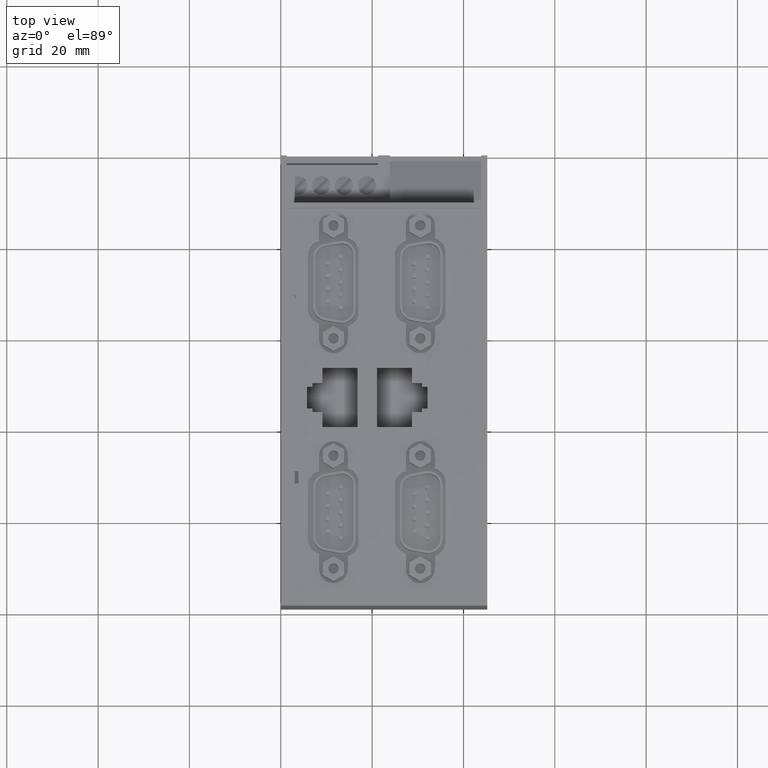
[diagram: clean part render]
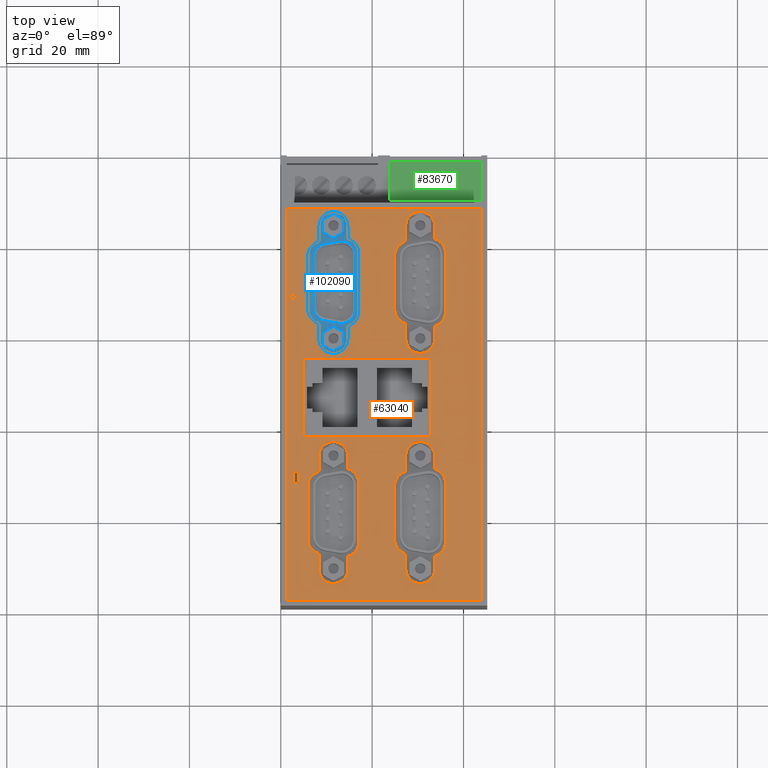
[diagram: same view with three faces highlighted in distinct colors, each labeled with its STEP entity id]
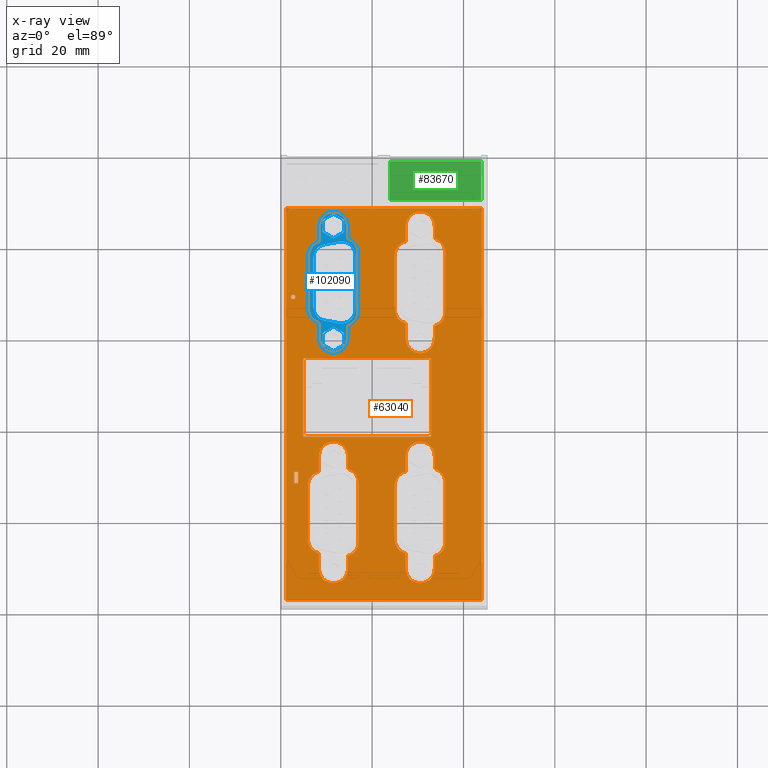
[diagram: x-ray of the same camera — body ghosted, the three highlighted faces saturated]
A machine part, top view with three faces highlighted in distinct colors.
The next image is the same camera in x-ray (body ghosted, the three faces saturated) — at least one of them is partly hidden behind the body in this view.
Their STEP definitions:

[orange] entity #63040 — the highlighted planar face has unit normal (-0, 0, 1).
#56980=CARTESIAN_POINT('',(-65.7499999999966,106.800000000019,
32.6499999999959));
#56990=VERTEX_POINT('',#56980);
#57020=CARTESIAN_POINT('',(24.,106.799999999941,32.6499999999959));
#57030=DIRECTION('',(-1.,7.38964445188328E-13,0.));
#57040=VECTOR('',#57030,1.);
#57050=LINE('',#57020,#57040);
#57060=CARTESIAN_POINT('',(20.0499999999852,106.799999999956,
32.6499999999959));
#57070=VERTEX_POINT('',#57060);
#57080=EDGE_CURVE('',#57070,#56990,#57050,.T.);
#57360=CARTESIAN_POINT('',(-65.7499999999966,106.800000000019,
-10.0499999998488));
#57370=VERTEX_POINT('',#57360);
#57400=CARTESIAN_POINT('',(-65.7499999999966,106.800000000008,-11.3));
#57410=DIRECTION('',(-6.47623918906154E-37,-8.76330016597908E-25,-1.));
#57420=VECTOR('',#57410,1.);
#57430=LINE('',#57400,#57420);
#57440=EDGE_CURVE('',#56990,#57370,#57430,.T.);
#57640=CARTESIAN_POINT('',(20.0499999999852,106.799999999944,-11.3));
#57650=DIRECTION('',(6.47623918906154E-37,8.76330016597908E-25,1.));
#57660=VECTOR('',#57650,1.);
#57670=LINE('',#57640,#57660);
#57680=CARTESIAN_POINT('',(20.0499999999852,106.799999999956,
-10.0499999998488));
#57690=VERTEX_POINT('',#57680);
#57700=EDGE_CURVE('',#57690,#57070,#57670,.T.);
#57890=CARTESIAN_POINT('',(-6.94999999994276,106.799999999976,
-2.19999999999999));
#57900=DIRECTION('',(7.38964445188328E-13,1.,-8.76330016597908E-25));
#57910=DIRECTION('',(1.,-7.38964445188328E-13,-0.));
#57920=AXIS2_PLACEMENT_3D('',#57890,#57900,#57910);
#57930=PLANE('',#57920);
#57940=CARTESIAN_POINT('',(28.9417518810975,106.799999999938,
16.0506000000365));
#57950=DIRECTION('',(1.,-7.38964445188328E-13,-0.));
#57960=VECTOR('',#57950,1.);
#57970=LINE('',#57940,#57960);
#57980=CARTESIAN_POINT('',(12.790088618989,106.799999999961,
16.0506000000365));
#57990=VERTEX_POINT('',#57980);
#58000=CARTESIAN_POINT('',(16.1737518811036,106.799999999959,
16.0506000000365));
#58010=VERTEX_POINT('',#58000);
#58020=EDGE_CURVE('',#57990,#58010,#57970,.T.);
#58030=ORIENTED_EDGE('',*,*,#58020,.T.);
#58040=CARTESIAN_POINT('',(9.70395180272197,106.799999999952,
16.7965118924752));
#58050=DIRECTION('',(7.38964445188328E-13,1.,-8.76330016597908E-25));
#58060=DIRECTION('',(-1.,7.38964445188328E-13,-2.39016997792508E-40));
#58070=AXIS2_PLACEMENT_3D('',#58040,#58050,#58060);
#58080=CIRCLE('',#58070,3.175);
#58090=CARTESIAN_POINT('',(9.19235799916622,106.799999999964,
13.6630000000192));
#58100=VERTEX_POINT('',#58090);
#58110=EDGE_CURVE('',#57990,#58100,#58080,.T.);
#58120=ORIENTED_EDGE('',*,*,#58110,.F.);
#58130=CARTESIAN_POINT('',(28.9417518810975,106.799999999938,
13.6630000000192));
#58140=DIRECTION('',(1.,-7.38964445188328E-13,-0.));
#58150=VECTOR('',#58140,1.);
#58160=LINE('',#58130,#58150);
#58170=CARTESIAN_POINT('',(-1.58445426617478,106.799999999972,
13.6630000000192));
#58180=VERTEX_POINT('',#58170);
#58190=EDGE_CURVE('',#58180,#58100,#58160,.T.);
#58200=ORIENTED_EDGE('',*,*,#58190,.T.);
#58210=CARTESIAN_POINT('',(-2.09604805066931,106.799999999961,
16.7965118955872));
#58220=DIRECTION('',(7.38964445188328E-13,1.,-8.76330016597908E-25));
#58230=DIRECTION('',(-1.,7.38964445188328E-13,-2.39016997792508E-40));
#58240=AXIS2_PLACEMENT_3D('',#58210,#58220,#58230);
#58250=CIRCLE('',#58240,3.175);
#58260=CARTESIAN_POINT('',(-5.18218486618412,106.799999999975,
16.0506000000365));
#58270=VERTEX_POINT('',#58260);
#58280=EDGE_CURVE('',#58180,#58270,#58250,.T.);
#58290=ORIENTED_EDGE('',*,*,#58280,.F.);
#58300=CARTESIAN_POINT('',(28.9417518810975,106.799999999938,
16.0506000000365));
#58310=DIRECTION('',(1.,-7.38964445188328E-13,-0.));
#58320=VECTOR('',#58310,1.);
#58330=LINE('',#58300,#58320);
#58340=CARTESIAN_POINT('',(-8.56584811889645,106.799999999977,
16.0506000000365));
#58350=VERTEX_POINT('',#58340);
#58360=EDGE_CURVE('',#58350,#58270,#58330,.T.);
#58370=ORIENTED_EDGE('',*,*,#58360,.T.);
#58380=CARTESIAN_POINT('',(-8.56584811889645,106.799999999965,
19.2256000000365));
#58390=DIRECTION('',(7.38964445188328E-13,1.,-8.76330016597908E-25));
#58400=DIRECTION('',(-4.66293670342565E-15,-8.72884272163913E-25,-1.));
#58410=AXIS2_PLACEMENT_3D('',#58380,#58390,#58400);
#58420=CIRCLE('',#58410,3.175);
#58430=CARTESIAN_POINT('',(-8.56584811889645,106.799999999977,
22.4006000000365));
#58440=VERTEX_POINT('',#58430);
#58450=EDGE_CURVE('',#58350,#58440,#58420,.T.);
#58460=ORIENTED_EDGE('',*,*,#58450,.F.);
#58470=CARTESIAN_POINT('',(28.9417518810975,106.799999999938,
22.4006000000365));
#58480=DIRECTION('',(-1.,7.38964445188328E-13,0.));
#58490=VECTOR('',#58480,1.);
#58500=LINE('',#58470,#58490);
#58510=CARTESIAN_POINT('',(-5.76007406284563,106.799999999975,
22.4006000000365));
#58520=VERTEX_POINT('',#58510);
#58530=EDGE_CURVE('',#58520,#58440,#58500,.T.);
#58540=ORIENTED_EDGE('',*,*,#58530,.T.);
#58550=CARTESIAN_POINT('',(-2.69604820968711,106.799999999961,
21.5685119210591));
#58560=DIRECTION('',(7.38964445188328E-13,1.,-8.76330016597908E-25));
#58570=DIRECTION('',(-1.,7.38964445188328E-13,-2.390169977918E-40));
#58580=AXIS2_PLACEMENT_3D('',#58550,#58560,#58570);
#58590=CIRCLE('',#58580,3.175);
#58600=CARTESIAN_POINT('',(-2.69604820968897,106.799999999973,
24.7435119210591));
#58610=VERTEX_POINT('',#58600);
#58620=EDGE_CURVE('',#58520,#58610,#58590,.T.);
#58630=ORIENTED_EDGE('',*,*,#58620,.F.);
#58640=CARTESIAN_POINT('',(28.9417518810975,106.799999999938,
24.7435119210591));
#58650=DIRECTION('',(-1.,7.38964445188328E-13,0.));
#58660=VECTOR('',#58650,1.);
#58670=LINE('',#58640,#58660);
#58680=CARTESIAN_POINT('',(10.3039519720795,106.799999999963,
24.7435119210591));
#58690=VERTEX_POINT('',#58680);
#58700=EDGE_CURVE('',#58690,#58610,#58670,.T.);
#58710=ORIENTED_EDGE('',*,*,#58700,.T.);
#58720=CARTESIAN_POINT('',(10.3039519720795,106.799999999952,
21.5685119210591));
#58730=DIRECTION('',(7.38964445188328E-13,1.,-8.76330016597908E-25));
#58740=DIRECTION('',(-1.,7.38964445188328E-13,-2.39016997793215E-40));
#58750=AXIS2_PLACEMENT_3D('',#58720,#58730,#58740);
#58760=CIRCLE('',#58750,3.175);
#58770=CARTESIAN_POINT('',(13.367977825238,106.799999999961,
22.4006000000365));
#58780=VERTEX_POINT('',#58770);
#58790=EDGE_CURVE('',#58690,#58780,#58760,.T.);
#58800=ORIENTED_EDGE('',*,*,#58790,.F.);
#58810=CARTESIAN_POINT('',(28.9417518810975,106.799999999938,
22.4006000000365));
#58820=DIRECTION('',(-1.,7.38964445188328E-13,0.));
#58830=VECTOR('',#58820,1.);
#58840=LINE('',#58810,#58830);
#58850=CARTESIAN_POINT('',(16.1737518811039,106.799999999959,
22.4006000000365));
#58860=VERTEX_POINT('',#58850);
#58870=EDGE_CURVE('',#58860,#58780,#58840,.T.);
#58880=ORIENTED_EDGE('',*,*,#58870,.T.);
#58890=CARTESIAN_POINT('',(16.1737518811036,106.799999999947,
19.2256000000365));
#58900=DIRECTION('',(7.38964445188328E-13,1.,-8.76330016597908E-25));
#58910=DIRECTION('',(7.105427357601E-15,8.71079358412773E-25,1.));
#58920=AXIS2_PLACEMENT_3D('',#58890,#58900,#58910);
#58930=CIRCLE('',#58920,3.175);
#58940=EDGE_CURVE('',#58860,#58010,#58930,.T.);
#58950=ORIENTED_EDGE('',*,*,#58940,.F.);
#58960=EDGE_LOOP('',(#58950,#58880,#58800,#58710,#58630,#58540,#58460,
#58370,#58290,#58200,#58120,#58030));
#58970=FACE_BOUND('',#58960,.T.);
#58980=CARTESIAN_POINT('',(-21.4582481189025,106.799999999938,
-2.9493999999635));
#58990=DIRECTION('',(1.,-7.38964445188328E-13,-0.));
#59000=VECTOR('',#58990,1.);
#59010=LINE('',#58980,#59000);
#59020=CARTESIAN_POINT('',(-37.609911381011,106.799999999999,
-2.9493999999635));
#59030=VERTEX_POINT('',#59020);
#59040=CARTESIAN_POINT('',(-34.2262481188964,106.799999999996,
-2.9493999999635));
#59050=VERTEX_POINT('',#59040);
#59060=EDGE_CURVE('',#59030,#59050,#59010,.T.);
#59070=ORIENTED_EDGE('',*,*,#59060,.T.);
#59080=CARTESIAN_POINT('',(-40.696048197278,106.799999999952,
-2.20348810752482));
#59090=DIRECTION('',(7.38964445188328E-13,1.,-8.76330016597908E-25));
#59100=DIRECTION('',(-1.,7.38964445188328E-13,-2.39016997792508E-40));
#59110=AXIS2_PLACEMENT_3D('',#59080,#59090,#59100);
#59120=CIRCLE('',#59110,3.175);
#59130=CARTESIAN_POINT('',(-41.2076420008338,106.800000000001,
-5.33699999998085));
#59140=VERTEX_POINT('',#59130);
#59150=EDGE_CURVE('',#59030,#59140,#59120,.T.);
#59160=ORIENTED_EDGE('',*,*,#59150,.F.);
#59170=CARTESIAN_POINT('',(-21.4582481189025,106.799999999938,
-5.33699999998085));
#59180=DIRECTION('',(1.,-7.38964445188328E-13,-0.));
#59190=VECTOR('',#59180,1.);
#59200=LINE('',#59170,#59190);
#59210=CARTESIAN_POINT('',(-51.9844542661748,106.800000000009,
-5.33699999998085));
#59220=VERTEX_POINT('',#59210);
#59230=EDGE_CURVE('',#59220,#59140,#59200,.T.);
#59240=ORIENTED_EDGE('',*,*,#59230,.T.);
#59250=CARTESIAN_POINT('',(-52.4960480506693,106.799999999961,
-2.20348810441278));
#59260=DIRECTION('',(7.38964445188328E-13,1.,-8.76330016597908E-25));
#59270=DIRECTION('',(-1.,7.38964445188328E-13,-2.39016997792508E-40));
#59280=AXIS2_PLACEMENT_3D('',#59250,#59260,#59270);
#59290=CIRCLE('',#59280,3.175);
#59300=CARTESIAN_POINT('',(-55.5821848661841,106.800000000012,
-2.94939999996351));
#59310=VERTEX_POINT('',#59300);
#59320=EDGE_CURVE('',#59220,#59310,#59290,.T.);
#59330=ORIENTED_EDGE('',*,*,#59320,.F.);
#59340=CARTESIAN_POINT('',(-21.4582481189025,106.799999999938,
-2.94939999996351));
#59350=DIRECTION('',(1.,-7.38964445188328E-13,-0.));
#59360=VECTOR('',#59350,1.);
#59370=LINE('',#59340,#59360);
#59380=CARTESIAN_POINT('',(-58.9658481188965,106.800000000014,
-2.94939999996351));
#59390=VERTEX_POINT('',#59380);
#59400=EDGE_CURVE('',#59390,#59310,#59370,.T.);
#59410=ORIENTED_EDGE('',*,*,#59400,.T.);
#59420=CARTESIAN_POINT('',(-58.9658481188965,106.799999999965,
0.225600000036501));
#59430=DIRECTION('',(7.38964445188328E-13,1.,-8.76330016597908E-25));
#59440=DIRECTION('',(-4.66293670342565E-15,-8.72884272163913E-25,-1.));
#59450=AXIS2_PLACEMENT_3D('',#59420,#59430,#59440);
#59460=CIRCLE('',#59450,3.175);
#59470=CARTESIAN_POINT('',(-58.9658481188964,106.800000000014,
3.4006000000365));
#59480=VERTEX_POINT('',#59470);
#59490=EDGE_CURVE('',#59390,#59480,#59460,.T.);
#59500=ORIENTED_EDGE('',*,*,#59490,.F.);
#59510=CARTESIAN_POINT('',(-21.4582481189025,106.799999999938,
3.4006000000365));
#59520=DIRECTION('',(-1.,7.38964445188328E-13,0.));
#59530=VECTOR('',#59520,1.);
#59540=LINE('',#59510,#59530);
#59550=CARTESIAN_POINT('',(-56.1600740628456,106.800000000012,
3.4006000000365));
#59560=VERTEX_POINT('',#59550);
#59570=EDGE_CURVE('',#59560,#59480,#59540,.T.);
#59580=ORIENTED_EDGE('',*,*,#59570,.T.);
#59590=CARTESIAN_POINT('',(-53.0960482096871,106.799999999961,
2.56851192105915));
#59600=DIRECTION('',(7.38964445188328E-13,1.,-8.76330016597908E-25));
#59610=DIRECTION('',(-1.,7.38964445188328E-13,-2.390169977918E-40));
#59620=AXIS2_PLACEMENT_3D('',#59590,#59600,#59610);
#59630=CIRCLE('',#59620,3.175);
#59640=CARTESIAN_POINT('',(-53.096048209689,106.80000000001,
5.74351192105915));
#59650=VERTEX_POINT('',#59640);
#59660=EDGE_CURVE('',#59560,#59650,#59630,.T.);
#59670=ORIENTED_EDGE('',*,*,#59660,.F.);
#59680=CARTESIAN_POINT('',(-21.4582481189025,106.799999999938,
5.74351192105915));
#59690=DIRECTION('',(-1.,7.38964445188328E-13,0.));
#59700=VECTOR('',#59690,1.);
#59710=LINE('',#59680,#59700);
#59720=CARTESIAN_POINT('',(-40.0960480279205,106.800000000001,
5.74351192105915));
#59730=VERTEX_POINT('',#59720);
#59740=EDGE_CURVE('',#59730,#59650,#59710,.T.);
#59750=ORIENTED_EDGE('',*,*,#59740,.T.);
#59760=CARTESIAN_POINT('',(-40.0960480279205,106.799999999952,
2.56851192105914));
#59770=DIRECTION('',(7.38964445188328E-13,1.,-8.76330016597908E-25));
#59780=DIRECTION('',(-1.,7.38964445188328E-13,-2.39016997793215E-40));
#59790=AXIS2_PLACEMENT_3D('',#59760,#59770,#59780);
#59800=CIRCLE('',#59790,3.175);
#59810=CARTESIAN_POINT('',(-37.032022174762,106.799999999998,
3.40060000003649));
#59820=VERTEX_POINT('',#59810);
#59830=EDGE_CURVE('',#59730,#59820,#59800,.T.);
#59840=ORIENTED_EDGE('',*,*,#59830,.F.);
#59850=CARTESIAN_POINT('',(-21.4582481189025,106.799999999938,
3.40060000003649));
#59860=DIRECTION('',(-1.,7.38964445188328E-13,0.));
#59870=VECTOR('',#59860,1.);
#59880=LINE('',#59850,#59870);
#59890=CARTESIAN_POINT('',(-34.2262481188961,106.799999999996,
3.40060000003649));
#59900=VERTEX_POINT('',#59890);
#59910=EDGE_CURVE('',#59900,#59820,#59880,.T.);
#59920=ORIENTED_EDGE('',*,*,#59910,.T.);
#59930=CARTESIAN_POINT('',(-34.2262481188965,106.799999999947,
0.225600000036501));
#59940=DIRECTION('',(7.38964445188328E-13,1.,-8.76330016597908E-25));
#59950=DIRECTION('',(7.105427357601E-15,8.71079358412773E-25,1.));
#59960=AXIS2_PLACEMENT_3D('',#59930,#59940,#59950);
#59970=CIRCLE('',#59960,3.175);
#59980=EDGE_CURVE('',#59900,#59050,#59970,.T.);
#59990=ORIENTED_EDGE('',*,*,#59980,.F.);
#60000=EDGE_LOOP('',(#59990,#59920,#59840,#59750,#59670,#59580,#59500,
#59410,#59330,#59240,#59160,#59070));
#60010=FACE_BOUND('',#60000,.T.);
#60020=CARTESIAN_POINT('',(-21.4582481189025,106.799999999938,
16.0506000000365));
#60030=DIRECTION('',(1.,-7.38964445188328E-13,-0.));
#60040=VECTOR('',#60030,1.);
#60050=LINE('',#60020,#60040);
#60060=CARTESIAN_POINT('',(-37.609911381011,106.799999999999,
16.0506000000365));
#60070=VERTEX_POINT('',#60060);
#60080=CARTESIAN_POINT('',(-34.2262481188964,106.799999999996,
16.0506000000365));
#60090=VERTEX_POINT('',#60080);
#60100=EDGE_CURVE('',#60070,#60090,#60050,.T.);
#60110=ORIENTED_EDGE('',*,*,#60100,.T.);
#60120=CARTESIAN_POINT('',(-40.696048197278,106.799999999952,
16.7965118924752));
#60130=DIRECTION('',(7.38964445188328E-13,1.,-8.76330016597908E-25));
#60140=DIRECTION('',(-1.,7.38964445188328E-13,-2.39016997792508E-40));
#60150=AXIS2_PLACEMENT_3D('',#60120,#60130,#60140);
#60160=CIRCLE('',#60150,3.175);
#60170=CARTESIAN_POINT('',(-41.2076420008338,106.800000000001,
13.6630000000192));
#60180=VERTEX_POINT('',#60170);
#60190=EDGE_CURVE('',#60070,#60180,#60160,.T.);
#60200=ORIENTED_EDGE('',*,*,#60190,.F.);
#60210=CARTESIAN_POINT('',(-21.4582481189025,106.799999999938,
13.6630000000192));
#60220=DIRECTION('',(1.,-7.38964445188328E-13,-0.));
#60230=VECTOR('',#60220,1.);
#60240=LINE('',#60210,#60230);
#60250=CARTESIAN_POINT('',(-51.9844542661748,106.800000000009,
13.6630000000192));
#60260=VERTEX_POINT('',#60250);
#60270=EDGE_CURVE('',#60260,#60180,#60240,.T.);
#60280=ORIENTED_EDGE('',*,*,#60270,.T.);
#60290=CARTESIAN_POINT('',(-52.4960480506693,106.799999999961,
16.7965118955872));
#60300=DIRECTION('',(7.38964445188328E-13,1.,-8.76330016597908E-25));
#60310=DIRECTION('',(-1.,7.38964445188328E-13,-2.39016997792508E-40));
#60320=AXIS2_PLACEMENT_3D('',#60290,#60300,#60310);
#60330=CIRCLE('',#60320,3.175);
#60340=CARTESIAN_POINT('',(-55.5821848661841,106.800000000012,
16.0506000000365));
#60350=VERTEX_POINT('',#60340);
#60360=EDGE_CURVE('',#60260,#60350,#60330,.T.);
#60370=ORIENTED_EDGE('',*,*,#60360,.F.);
#60380=CARTESIAN_POINT('',(-21.4582481189025,106.799999999938,
16.0506000000365));
#60390=DIRECTION('',(1.,-7.38964445188328E-13,-0.));
#60400=VECTOR('',#60390,1.);
#60410=LINE('',#60380,#60400);
#60420=CARTESIAN_POINT('',(-58.9658481188965,106.800000000014,
16.0506000000365));
#60430=VERTEX_POINT('',#60420);
#60440=EDGE_CURVE('',#60430,#60350,#60410,.T.);
#60450=ORIENTED_EDGE('',*,*,#60440,.T.);
#60460=CARTESIAN_POINT('',(-58.9658481188965,106.799999999965,
19.2256000000365));
#60470=DIRECTION('',(7.38964445188328E-13,1.,-8.76330016597908E-25));
#60480=DIRECTION('',(-4.66293670342565E-15,-8.72884272163913E-25,-1.));
#60490=AXIS2_PLACEMENT_3D('',#60460,#60470,#60480);
#60500=CIRCLE('',#60490,3.175);
#60510=CARTESIAN_POINT('',(-58.9658481188964,106.800000000014,
22.4006000000365));
#60520=VERTEX_POINT('',#60510);
#60530=EDGE_CURVE('',#60430,#60520,#60500,.T.);
#60540=ORIENTED_EDGE('',*,*,#60530,.F.);
#60550=CARTESIAN_POINT('',(-21.4582481189025,106.799999999938,
22.4006000000365));
#60560=DIRECTION('',(-1.,7.38964445188328E-13,0.));
#60570=VECTOR('',#60560,1.);
#60580=LINE('',#60550,#60570);
#60590=CARTESIAN_POINT('',(-56.1600740628456,106.800000000012,
22.4006000000365));
#60600=VERTEX_POINT('',#60590);
#60610=EDGE_CURVE('',#60600,#60520,#60580,.T.);
#60620=ORIENTED_EDGE('',*,*,#60610,.T.);
#60630=CARTESIAN_POINT('',(-53.0960482096871,106.799999999961,
21.5685119210591));
#60640=DIRECTION('',(7.38964445188328E-13,1.,-8.76330016597908E-25));
#60650=DIRECTION('',(-1.,7.38964445188328E-13,-2.390169977918E-40));
#60660=AXIS2_PLACEMENT_3D('',#60630,#60640,#60650);
#60670=CIRCLE('',#60660,3.175);
#60680=CARTESIAN_POINT('',(-53.096048209689,106.80000000001,
24.7435119210591));
#60690=VERTEX_POINT('',#60680);
#60700=EDGE_CURVE('',#60600,#60690,#60670,.T.);
#60710=ORIENTED_EDGE('',*,*,#60700,.F.);
#60720=CARTESIAN_POINT('',(-21.4582481189025,106.799999999938,
24.7435119210591));
#60730=DIRECTION('',(-1.,7.38964445188328E-13,0.));
#60740=VECTOR('',#60730,1.);
#60750=LINE('',#60720,#60740);
#60760=CARTESIAN_POINT('',(-40.0960480279205,106.800000000001,
24.7435119210591));
#60770=VERTEX_POINT('',#60760);
#60780=EDGE_CURVE('',#60770,#60690,#60750,.T.);
#60790=ORIENTED_EDGE('',*,*,#60780,.T.);
#60800=CARTESIAN_POINT('',(-40.0960480279205,106.799999999952,
21.5685119210591));
#60810=DIRECTION('',(7.38964445188328E-13,1.,-8.76330016597908E-25));
#60820=DIRECTION('',(-1.,7.38964445188328E-13,-2.39016997793215E-40));
#60830=AXIS2_PLACEMENT_3D('',#60800,#60810,#60820);
#60840=CIRCLE('',#60830,3.175);
#60850=CARTESIAN_POINT('',(-37.032022174762,106.799999999998,
22.4006000000365));
#60860=VERTEX_POINT('',#60850);
#60870=EDGE_CURVE('',#60770,#60860,#60840,.T.);
#60880=ORIENTED_EDGE('',*,*,#60870,.F.);
#60890=CARTESIAN_POINT('',(-21.4582481189025,106.799999999938,
22.4006000000365));
#60900=DIRECTION('',(-1.,7.38964445188328E-13,0.));
#60910=VECTOR('',#60900,1.);
#60920=LINE('',#60890,#60910);
#60930=CARTESIAN_POINT('',(-34.2262481188961,106.799999999996,
22.4006000000365));
#60940=VERTEX_POINT('',#60930);
#60950=EDGE_CURVE('',#60940,#60860,#60920,.T.);
#60960=ORIENTED_EDGE('',*,*,#60950,.T.);
#60970=CARTESIAN_POINT('',(-34.2262481188965,106.799999999947,
19.2256000000365));
#60980=DIRECTION('',(7.38964445188328E-13,1.,-8.76330016597908E-25));
#60990=DIRECTION('',(7.105427357601E-15,8.71079358412773E-25,1.));
#61000=AXIS2_PLACEMENT_3D('',#60970,#60980,#60990);
#61010=CIRCLE('',#61000,3.175);
#61020=EDGE_CURVE('',#60940,#60090,#61010,.T.);
#61030=ORIENTED_EDGE('',*,*,#61020,.F.);
#61040=EDGE_LOOP('',(#61030,#60960,#60880,#60790,#60710,#60620,#60540,
#60450,#60370,#60280,#60200,#60110));
#61050=FACE_BOUND('',#61040,.T.);
#61060=CARTESIAN_POINT('',(40.4,106.799999999941,-6.38539999995358));
#61070=DIRECTION('',(-1.,7.38964445188328E-13,0.));
#61080=VECTOR('',#61070,1.);
#61090=LINE('',#61060,#61080);
#61100=CARTESIAN_POINT('',(-12.815400000017,106.79999999998,
-6.38539999995358));
#61110=VERTEX_POINT('',#61100);
#61120=CARTESIAN_POINT('',(-30.015400000017,106.799999999993,
-6.38539999995358));
#61130=VERTEX_POINT('',#61120);
#61140=EDGE_CURVE('',#61110,#61130,#61090,.T.);
#61150=ORIENTED_EDGE('',*,*,#61140,.F.);
#61160=CARTESIAN_POINT('',(-30.015400000017,106.799999999993,-11.3));
#61170=DIRECTION('',(-6.47623918906154E-37,-8.76330016597908E-25,-1.));
#61180=VECTOR('',#61170,1.);
#61190=LINE('',#61160,#61180);
#61200=CARTESIAN_POINT('',(-30.015400000017,106.799999999993,
21.6146000000464));
#61210=VERTEX_POINT('',#61200);
#61220=EDGE_CURVE('',#61210,#61130,#61190,.T.);
#61230=ORIENTED_EDGE('',*,*,#61220,.T.);
#61240=CARTESIAN_POINT('',(40.4,106.799999999941,21.6146000000464));
#61250=DIRECTION('',(1.,-7.38964445188328E-13,-0.));
#61260=VECTOR('',#61250,1.);
#61270=LINE('',#61240,#61260);
#61280=CARTESIAN_POINT('',(-12.815400000017,106.79999999998,
21.6146000000464));
#61290=VERTEX_POINT('',#61280);
#61300=EDGE_CURVE('',#61210,#61290,#61270,.T.);
#61310=ORIENTED_EDGE('',*,*,#61300,.F.);
#61320=CARTESIAN_POINT('',(-12.815400000017,106.799999999981,-11.3));
#61330=DIRECTION('',(6.47623918906154E-37,8.76330016597908E-25,1.));
#61340=VECTOR('',#61330,1.);
#61350=LINE('',#61320,#61340);
#61360=EDGE_CURVE('',#61110,#61290,#61350,.T.);
#61370=ORIENTED_EDGE('',*,*,#61360,.T.);
#61380=EDGE_LOOP('',(#61370,#61310,#61230,#61150));
#61390=FACE_BOUND('',#61380,.T.);
#61400=CARTESIAN_POINT('',(-40.2333999999013,106.800000000001,-13.5));
#61410=DIRECTION('',(-6.62562871323012E-18,-8.76325120071037E-25,-1.));
#61420=VECTOR('',#61410,1.);
#61430=LINE('',#61400,#61420);
#61440=CARTESIAN_POINT('',(-40.2333999999013,106.800000000001,
-7.44339999998654));
#61450=VERTEX_POINT('',#61440);
#61460=CARTESIAN_POINT('',(-40.2333999999013,106.800000000001,
-8.44339999998654));
#61470=VERTEX_POINT('',#61460);
#61480=EDGE_CURVE('',#61450,#61470,#61430,.T.);
#61490=ORIENTED_EDGE('',*,*,#61480,.T.);
#61500=CARTESIAN_POINT('',(39.9,106.799999999941,-7.44339999998654));
#61510=DIRECTION('',(-1.,7.38964445188328E-13,6.62562860080833E-18));
#61520=VECTOR('',#61510,1.);
#61530=LINE('',#61500,#61520);
#61540=CARTESIAN_POINT('',(-37.6333999999013,106.799999999999,
-7.44339999998654));
#61550=VERTEX_POINT('',#61540);
#61560=EDGE_CURVE('',#61550,#61450,#61530,.T.);
#61570=ORIENTED_EDGE('',*,*,#61560,.T.);
#61580=CARTESIAN_POINT('',(-37.6333999999013,106.799999999999,-13.5));
#61590=DIRECTION('',(6.62562871323012E-18,8.76325120071037E-25,1.));
#61600=VECTOR('',#61590,1.);
#61610=LINE('',#61580,#61600);
#61620=CARTESIAN_POINT('',(-37.6333999999013,106.799999999999,
-8.44339999998654));
#61630=VERTEX_POINT('',#61620);
#61640=EDGE_CURVE('',#61630,#61550,#61610,.T.);
#61650=ORIENTED_EDGE('',*,*,#61640,.T.);
#61660=CARTESIAN_POINT('',(39.9,106.799999999941,-8.44339999998654));
#61670=DIRECTION('',(1.,-7.38964445188328E-13,-6.62562860080833E-18));
#61680=VECTOR('',#61670,1.);
#61690=LINE('',#61660,#61680);
#61700=EDGE_CURVE('',#61470,#61630,#61690,.T.);
#61710=ORIENTED_EDGE('',*,*,#61700,.T.);
#61720=EDGE_LOOP('',(#61710,#61650,#61570,#61490));
#61730=FACE_BOUND('',#61720,.T.);
#61740=CARTESIAN_POINT('',(0.591999999983017,106.8,-8.58819999998434));
#61750=DIRECTION('',(7.38964445188328E-13,1.,-8.76330016597908E-25));
#61760=DIRECTION('',(-1.,7.38964445188328E-13,3.59138363842027E-39));
#61770=AXIS2_PLACEMENT_3D('',#61740,#61750,#61760);
#61780=CIRCLE('',#61770,0.54);
#61790=CARTESIAN_POINT('',(0.0519999999830167,106.799999999971,
-8.58819999998434));
#61800=VERTEX_POINT('',#61790);
#61810=CARTESIAN_POINT('',(1.13199999998302,106.799999999999,
-8.58819999998434));
#61820=VERTEX_POINT('',#61810);
#61830=EDGE_CURVE('',#61800,#61820,#61780,.T.);
#61840=ORIENTED_EDGE('',*,*,#61830,.F.);
#61850=EDGE_CURVE('',#61820,#61800,#61780,.T.);
#61860=ORIENTED_EDGE('',*,*,#61850,.F.);
#61870=EDGE_LOOP('',(#61860,#61840));
#61880=FACE_BOUND('',#61870,.T.);
#61890=CARTESIAN_POINT('',(28.9417518810975,106.799999999938,
-2.9493999999635));
#61900=DIRECTION('',(1.,-7.38964445188328E-13,-0.));
#61910=VECTOR('',#61900,1.);
#61920=LINE('',#61890,#61910);
#61930=CARTESIAN_POINT('',(12.790088618989,106.799999999961,
-2.9493999999635));
#61940=VERTEX_POINT('',#61930);
#61950=CARTESIAN_POINT('',(16.1737518811036,106.799999999959,
-2.9493999999635));
#61960=VERTEX_POINT('',#61950);
#61970=EDGE_CURVE('',#61940,#61960,#61920,.T.);
#61980=ORIENTED_EDGE('',*,*,#61970,.T.);
#61990=CARTESIAN_POINT('',(9.70395180272197,106.799999999952,
-2.20348810752482));
#62000=DIRECTION('',(7.38964445188328E-13,1.,-8.76330016597908E-25));
#62010=DIRECTION('',(-1.,7.38964445188328E-13,-2.39016997792508E-40));
#62020=AXIS2_PLACEMENT_3D('',#61990,#62000,#62010);
#62030=CIRCLE('',#62020,3.175);
#62040=CARTESIAN_POINT('',(9.19235799916622,106.799999999964,
-5.33699999998085));
#62050=VERTEX_POINT('',#62040);
#62060=EDGE_CURVE('',#61940,#62050,#62030,.T.);
#62070=ORIENTED_EDGE('',*,*,#62060,.F.);
#62080=CARTESIAN_POINT('',(28.9417518810975,106.799999999938,
-5.33699999998085));
#62090=DIRECTION('',(1.,-7.38964445188328E-13,-0.));
#62100=VECTOR('',#62090,1.);
#62110=LINE('',#62080,#62100);
#62120=CARTESIAN_POINT('',(-1.58445426617478,106.799999999972,
-5.33699999998085));
#62130=VERTEX_POINT('',#62120);
#62140=EDGE_CURVE('',#62130,#62050,#62110,.T.);
#62150=ORIENTED_EDGE('',*,*,#62140,.T.);
#62160=CARTESIAN_POINT('',(-2.09604805066931,106.799999999961,
-2.20348810441278));
#62170=DIRECTION('',(7.38964445188328E-13,1.,-8.76330016597908E-25));
#62180=DIRECTION('',(-1.,7.38964445188328E-13,-2.39016997792508E-40));
#62190=AXIS2_PLACEMENT_3D('',#62160,#62170,#62180);
#62200=CIRCLE('',#62190,3.175);
#62210=CARTESIAN_POINT('',(-5.18218486618412,106.799999999975,
-2.94939999996351));
#62220=VERTEX_POINT('',#62210);
#62230=EDGE_CURVE('',#62130,#62220,#62200,.T.);
#62240=ORIENTED_EDGE('',*,*,#62230,.F.);
#62250=CARTESIAN_POINT('',(28.9417518810975,106.799999999938,
-2.94939999996351));
#62260=DIRECTION('',(1.,-7.38964445188328E-13,-0.));
#62270=VECTOR('',#62260,1.);
#62280=LINE('',#62250,#62270);
#62290=CARTESIAN_POINT('',(-8.56584811889645,106.799999999977,
-2.94939999996351));
#62300=VERTEX_POINT('',#62290);
#62310=EDGE_CURVE('',#62300,#62220,#62280,.T.);
#62320=ORIENTED_EDGE('',*,*,#62310,.T.);
#62330=CARTESIAN_POINT('',(-8.56584811889645,106.799999999965,
0.225600000036501));
#62340=DIRECTION('',(7.38964445188328E-13,1.,-8.76330016597908E-25));
#62350=DIRECTION('',(-4.66293670342565E-15,-8.72884272163913E-25,-1.));
#62360=AXIS2_PLACEMENT_3D('',#62330,#62340,#62350);
#62370=CIRCLE('',#62360,3.175);
#62380=CARTESIAN_POINT('',(-8.56584811889645,106.799999999977,
3.4006000000365));
#62390=VERTEX_POINT('',#62380);
#62400=EDGE_CURVE('',#62300,#62390,#62370,.T.);
#62410=ORIENTED_EDGE('',*,*,#62400,.F.);
#62420=CARTESIAN_POINT('',(28.9417518810975,106.799999999938,
3.4006000000365));
#62430=DIRECTION('',(-1.,7.38964445188328E-13,0.));
#62440=VECTOR('',#62430,1.);
#62450=LINE('',#62420,#62440);
#62460=CARTESIAN_POINT('',(-5.76007406284563,106.799999999975,
3.4006000000365));
#62470=VERTEX_POINT('',#62460);
#62480=EDGE_CURVE('',#62470,#62390,#62450,.T.);
#62490=ORIENTED_EDGE('',*,*,#62480,.T.);
#62500=CARTESIAN_POINT('',(-2.69604820968711,106.799999999961,
2.56851192105915));
#62510=DIRECTION('',(7.38964445188328E-13,1.,-8.76330016597908E-25));
#62520=DIRECTION('',(-1.,7.38964445188328E-13,-2.390169977918E-40));
#62530=AXIS2_PLACEMENT_3D('',#62500,#62510,#62520);
#62540=CIRCLE('',#62530,3.175);
#62550=CARTESIAN_POINT('',(-2.69604820968897,106.799999999973,
5.74351192105915));
#62560=VERTEX_POINT('',#62550);
#62570=EDGE_CURVE('',#62470,#62560,#62540,.T.);
#62580=ORIENTED_EDGE('',*,*,#62570,.F.);
#62590=CARTESIAN_POINT('',(28.9417518810975,106.799999999938,
5.74351192105915));
#62600=DIRECTION('',(-1.,7.38964445188328E-13,0.));
#62610=VECTOR('',#62600,1.);
#62620=LINE('',#62590,#62610);
#62630=CARTESIAN_POINT('',(10.3039519720795,106.799999999963,
5.74351192105915));
#62640=VERTEX_POINT('',#62630);
#62650=EDGE_CURVE('',#62640,#62560,#62620,.T.);
#62660=ORIENTED_EDGE('',*,*,#62650,.T.);
#62670=CARTESIAN_POINT('',(10.3039519720795,106.799999999952,
2.56851192105914));
#62680=DIRECTION('',(7.38964445188328E-13,1.,-8.76330016597908E-25));
#62690=DIRECTION('',(-1.,7.38964445188328E-13,-2.39016997793215E-40));
#62700=AXIS2_PLACEMENT_3D('',#62670,#62680,#62690);
#62710=CIRCLE('',#62700,3.175);
#62720=CARTESIAN_POINT('',(13.367977825238,106.799999999961,
3.40060000003649));
#62730=VERTEX_POINT('',#62720);
#62740=EDGE_CURVE('',#62640,#62730,#62710,.T.);
#62750=ORIENTED_EDGE('',*,*,#62740,.F.);
#62760=CARTESIAN_POINT('',(28.9417518810975,106.799999999938,
3.40060000003649));
#62770=DIRECTION('',(-1.,7.38964445188328E-13,0.));
#62780=VECTOR('',#62770,1.);
#62790=LINE('',#62760,#62780);
#62800=CARTESIAN_POINT('',(16.1737518811039,106.799999999959,
3.40060000003649));
#62810=VERTEX_POINT('',#62800);
#62820=EDGE_CURVE('',#62810,#62730,#62790,.T.);
#62830=ORIENTED_EDGE('',*,*,#62820,.T.);
#62840=CARTESIAN_POINT('',(16.1737518811036,106.799999999947,
0.225600000036501));
#62850=DIRECTION('',(7.38964445188328E-13,1.,-8.76330016597908E-25));
#62860=DIRECTION('',(7.105427357601E-15,8.71079358412773E-25,1.));
#62870=AXIS2_PLACEMENT_3D('',#62840,#62850,#62860);
#62880=CIRCLE('',#62870,3.175);
#62890=EDGE_CURVE('',#62810,#61960,#62880,.T.);
#62900=ORIENTED_EDGE('',*,*,#62890,.F.);
#62910=EDGE_LOOP('',(#62900,#62830,#62750,#62660,#62580,#62490,#62410,
#62320,#62240,#62150,#62070,#61980));
#62920=FACE_BOUND('',#62910,.T.);
#62930=ORIENTED_EDGE('',*,*,#57700,.F.);
#62940=ORIENTED_EDGE('',*,*,#57080,.F.);
#62950=ORIENTED_EDGE('',*,*,#57440,.F.);
#62960=CARTESIAN_POINT('',(24.,106.799999999941,-10.0499999998488));
#62970=DIRECTION('',(1.,-7.38964445188328E-13,-0.));
#62980=VECTOR('',#62970,1.);
#62990=LINE('',#62960,#62980);
#63000=EDGE_CURVE('',#57370,#57690,#62990,.T.);
#63010=ORIENTED_EDGE('',*,*,#63000,.F.);
#63020=EDGE_LOOP('',(#63010,#62950,#62940,#62930));
#63030=FACE_OUTER_BOUND('',#63020,.T.);
#63040=ADVANCED_FACE('',(#58970,#60010,#61050,#61390,#61730,#61880,
#62920,#63030),#57930,.T.);

[blue] entity #102090 — the highlighted planar face has unit normal (0, -0, -1).
#98790=CARTESIAN_POINT('',(12.7900886189875,104.799999999969,
-2.94939999996351));
#98800=VERTEX_POINT('',#98790);
#98880=CARTESIAN_POINT('',(16.1737518811021,104.799999999966,
-2.9493999999635));
#98890=VERTEX_POINT('',#98880);
#98920=CARTESIAN_POINT('',(16.1055854856261,104.799999999966,
-2.94939999996351));
#98930=DIRECTION('',(-1.,7.38964445188328E-13,-6.35078667791083E-39));
#98940=VECTOR('',#98930,1.);
#98950=LINE('',#98920,#98940);
#98960=EDGE_CURVE('',#98890,#98800,#98950,.T.);
#99390=CARTESIAN_POINT('',(-17.6082481189499,104.799999999991,
1.65099999998025));
#99400=DIRECTION('',(-7.38964445188328E-13,-1.,8.76330016597908E-25));
#99410=DIRECTION('',(1.,-7.38964445188328E-13,-0.));
#99420=AXIS2_PLACEMENT_3D('',#99390,#99400,#99410);
#99430=PLANE('',#99420);
#99440=CARTESIAN_POINT('',(28.9417518810975,104.799999999957,
-4.19924403946168));
#99450=DIRECTION('',(-1.,7.38964445188328E-13,8.56103293773659E-15));
#99460=VECTOR('',#99450,1.);
#99470=LINE('',#99440,#99460);
#99480=CARTESIAN_POINT('',(9.18499533764825,104.799999999972,
-4.19924403946151));
#99490=VERTEX_POINT('',#99480);
#99500=CARTESIAN_POINT('',(-1.57709160466005,104.799999999979,
-4.19924403946141));
#99510=VERTEX_POINT('',#99500);
#99520=EDGE_CURVE('',#99490,#99510,#99470,.T.);
#99530=ORIENTED_EDGE('',*,*,#99520,.F.);
#99540=CARTESIAN_POINT('',(-1.57709160466002,104.799999999979,
-1.15924403946141));
#99550=DIRECTION('',(4.90822482988215E-15,-1.,-1.2878153174413E-13));
#99560=DIRECTION('',(-1.18185031586111E-14,1.2878153174413E-13,-1.));
#99570=AXIS2_PLACEMENT_3D('',#99540,#99550,#99560);
#99580=CIRCLE('',#99570,3.04000000000001);
#99590=CARTESIAN_POINT('',(-4.57090717381715,104.799999999979,
-1.68713449956887));
#99600=VERTEX_POINT('',#99590);
#99610=EDGE_CURVE('',#99600,#99510,#99580,.T.);
#99620=ORIENTED_EDGE('',*,*,#99610,.T.);
#99630=CARTESIAN_POINT('',(-3.16701546930275,104.79999999998,
-9.64900000009366));
#99640=DIRECTION('',(-0.173648177666925,1.2832790385886E-13,
0.984807753012209));
#99650=VECTOR('',#99640,1.);
#99660=LINE('',#99630,#99650);
#99670=CARTESIAN_POINT('',(-5.12986370266297,104.79999999998,
1.48286550043114));
#99680=VERTEX_POINT('',#99670);
#99690=EDGE_CURVE('',#99600,#99680,#99660,.T.);
#99700=ORIENTED_EDGE('',*,*,#99690,.F.);
#99710=CARTESIAN_POINT('',(-2.13604813350586,104.79999999998,
2.01075596053859));
#99720=DIRECTION('',(4.90822482988215E-15,-1.,-1.2878153174413E-13));
#99730=DIRECTION('',(-1.,-4.90822482988303E-15,6.8517159431618E-15));
#99740=AXIS2_PLACEMENT_3D('',#99710,#99720,#99730);
#99750=CIRCLE('',#99740,3.04);
#99760=CARTESIAN_POINT('',(-2.13604813350582,104.79999999998,
5.05075596053859));
#99770=VERTEX_POINT('',#99760);
#99780=EDGE_CURVE('',#99770,#99680,#99750,.T.);
#99790=ORIENTED_EDGE('',*,*,#99780,.T.);
#99800=CARTESIAN_POINT('',(28.9417518810975,104.799999999957,
5.05075596053833));
#99810=DIRECTION('',(1.,-7.38964445188328E-13,-8.61887528884398E-15));
#99820=VECTOR('',#99810,1.);
#99830=LINE('',#99800,#99820);
#99840=CARTESIAN_POINT('',(9.74395186649418,104.79999999997,
5.05075596053849));
#99850=VERTEX_POINT('',#99840);
#99860=EDGE_CURVE('',#99770,#99850,#99830,.T.);
#99870=ORIENTED_EDGE('',*,*,#99860,.F.);
#99880=CARTESIAN_POINT('',(9.74395186649415,104.799999999971,
2.01075596053848));
#99890=DIRECTION('',(4.90822482988215E-15,-1.,-1.2878153174413E-13));
#99900=DIRECTION('',(7.14387989703153E-15,-1.2878153174413E-13,1.));
#99910=AXIS2_PLACEMENT_3D('',#99880,#99890,#99900);
#99920=CIRCLE('',#99910,3.04);
#99930=CARTESIAN_POINT('',(12.7377674356513,104.799999999969,
1.48286550043097));
#99940=VERTEX_POINT('',#99930);
#99950=EDGE_CURVE('',#99940,#99850,#99920,.T.);
#99960=ORIENTED_EDGE('',*,*,#99950,.T.);
#99970=CARTESIAN_POINT('',(10.7749192022909,104.79999999997,
-9.64900000009366));
#99980=DIRECTION('',(-0.173648177666943,1.2832790385886E-13,
-0.984807753012206));
#99990=VECTOR('',#99980,1.);
#100000=LINE('',#99970,#99990);
#100010=CARTESIAN_POINT('',(12.1788109068054,104.799999999969,
-1.68713449956901));
#100020=VERTEX_POINT('',#100010);
#100030=EDGE_CURVE('',#99940,#100020,#100000,.T.);
#100040=ORIENTED_EDGE('',*,*,#100030,.F.);
#100050=CARTESIAN_POINT('',(9.18499533764828,104.799999999971,
-1.1592440394615));
#100060=DIRECTION('',(4.90822482988215E-15,-1.,-1.2878153174413E-13));
#100070=DIRECTION('',(0.984807753012206,2.71963361705208E-14,
-0.173648177666943));
#100080=AXIS2_PLACEMENT_3D('',#100050,#100060,#100070);
#100090=CIRCLE('',#100080,3.04000000000001);
#100100=EDGE_CURVE('',#99490,#100020,#100090,.T.);
#100110=ORIENTED_EDGE('',*,*,#100100,.T.);
#100120=EDGE_LOOP('',(#100110,#100040,#99960,#99870,#99790,#99700,#99620
,#99530));
#100130=FACE_BOUND('',#100120,.T.);
#100140=CARTESIAN_POINT('',(-11.5686468690284,104.799999999987,
-9.64900000009366));
#100150=DIRECTION('',(-0.500000000000005,3.69482222595252E-13,
-0.866025403784436));
#100160=VECTOR('',#100150,1.);
#100170=LINE('',#100140,#100160);
#100180=CARTESIAN_POINT('',(-5.8675439008133,104.799999999982,
0.225600000036476));
#100190=VERTEX_POINT('',#100180);
#100200=CARTESIAN_POINT('',(-7.21669600985562,104.799999999983,
-2.1111999999635));
#100210=VERTEX_POINT('',#100200);
#100220=EDGE_CURVE('',#100190,#100210,#100170,.T.);
#100230=ORIENTED_EDGE('',*,*,#100220,.F.);
#100240=CARTESIAN_POINT('',(28.9417518810975,104.799999999957,
-2.1111999999637));
#100250=DIRECTION('',(-1.,7.38964445188328E-13,5.36167977862977E-15));
#100260=VECTOR('',#100250,1.);
#100270=LINE('',#100240,#100260);
#100280=CARTESIAN_POINT('',(-9.91500022794025,104.799999999985,
-2.11119999996349));
#100290=VERTEX_POINT('',#100280);
#100300=EDGE_CURVE('',#100210,#100290,#100270,.T.);
#100310=ORIENTED_EDGE('',*,*,#100300,.F.);
#100320=CARTESIAN_POINT('',(-5.56304936876759,104.799999999982,
-9.64900000009366));
#100330=DIRECTION('',(-0.499999999999995,3.69482222595252E-13,
0.866025403784442));
#100340=VECTOR('',#100330,1.);
#100350=LINE('',#100320,#100340);
#100360=CARTESIAN_POINT('',(-11.2641523369826,104.799999999986,
0.225600000036529));
#100370=VERTEX_POINT('',#100360);
#100380=EDGE_CURVE('',#100290,#100370,#100350,.T.);
#100390=ORIENTED_EDGE('',*,*,#100380,.F.);
#100400=CARTESIAN_POINT('',(-16.9652553051977,104.799999999991,
-9.64900000009366));
#100410=DIRECTION('',(0.500000000000006,-3.69482222595252E-13,
0.866025403784435));
#100420=VECTOR('',#100410,1.);
#100430=LINE('',#100400,#100420);
#100440=CARTESIAN_POINT('',(-9.91500022794023,104.799999999985,
2.56240000003652));
#100450=VERTEX_POINT('',#100440);
#100460=EDGE_CURVE('',#100370,#100450,#100430,.T.);
#100470=ORIENTED_EDGE('',*,*,#100460,.F.);
#100480=CARTESIAN_POINT('',(28.9417518810975,104.799999999957,
2.5624000000363));
#100490=DIRECTION('',(1.,-7.38964445188328E-13,-5.52821323232354E-15));
#100500=VECTOR('',#100490,1.);
#100510=LINE('',#100480,#100500);
#100520=CARTESIAN_POINT('',(-7.2166960098556,104.799999999983,
2.5624000000365));
#100530=VERTEX_POINT('',#100520);
#100540=EDGE_CURVE('',#100450,#100530,#100510,.T.);
#100550=ORIENTED_EDGE('',*,*,#100540,.F.);
#100560=CARTESIAN_POINT('',(-0.166440932598359,104.799999999978,
-9.64900000009366));
#100570=DIRECTION('',(0.499999999999995,-3.69482222595252E-13,
-0.866025403784442));
#100580=VECTOR('',#100570,1.);
#100590=LINE('',#100560,#100580);
#100600=EDGE_CURVE('',#100530,#100190,#100590,.T.);
#100610=ORIENTED_EDGE('',*,*,#100600,.F.);
#100620=EDGE_LOOP('',(#100610,#100550,#100470,#100390,#100310,#100230));
#100630=FACE_BOUND('',#100620,.T.);
#100640=CARTESIAN_POINT('',(28.9417518810975,104.799999999957,
-2.11119999996356));
#100650=DIRECTION('',(-1.,7.38964445188328E-13,5.36167977862977E-15));
#100660=VECTOR('',#100650,1.);
#100670=LINE('',#100640,#100660);
#100680=CARTESIAN_POINT('',(17.5229039901444,104.799999999965,
-2.1111999999635));
#100690=VERTEX_POINT('',#100680);
#100700=CARTESIAN_POINT('',(14.8245997720597,104.799999999967,
-2.11119999996349));
#100710=VERTEX_POINT('',#100700);
#100720=EDGE_CURVE('',#100690,#100710,#100670,.T.);
#100730=ORIENTED_EDGE('',*,*,#100720,.F.);
#100740=CARTESIAN_POINT('',(19.1765506312324,104.799999999964,
-9.64900000009366));
#100750=DIRECTION('',(-0.499999999999995,3.69482222595252E-13,
0.866025403784442));
#100760=VECTOR('',#100750,1.);
#100770=LINE('',#100740,#100760);
#100780=CARTESIAN_POINT('',(13.4754476630174,104.799999999968,
0.225600000036525));
#100790=VERTEX_POINT('',#100780);
#100800=EDGE_CURVE('',#100710,#100790,#100770,.T.);
#100810=ORIENTED_EDGE('',*,*,#100800,.F.);
#100820=CARTESIAN_POINT('',(7.7743446948023,104.799999999972,
-9.64900000009366));
#100830=DIRECTION('',(0.500000000000006,-3.69482222595252E-13,
0.866025403784435));
#100840=VECTOR('',#100830,1.);
#100850=LINE('',#100820,#100840);
#100860=CARTESIAN_POINT('',(14.8245997720598,104.799999999967,
2.56240000003651));
#100870=VERTEX_POINT('',#100860);
#100880=EDGE_CURVE('',#100790,#100870,#100850,.T.);
#100890=ORIENTED_EDGE('',*,*,#100880,.F.);
#100900=CARTESIAN_POINT('',(28.9417518810975,104.799999999957,
2.56240000003643));
#100910=DIRECTION('',(1.,-7.38964445188328E-13,-5.52821323232354E-15));
#100920=VECTOR('',#100910,1.);
#100930=LINE('',#100900,#100920);
#100940=CARTESIAN_POINT('',(17.5229039901444,104.799999999965,
2.5624000000365));
#100950=VERTEX_POINT('',#100940);
#100960=EDGE_CURVE('',#100870,#100950,#100930,.T.);
#100970=ORIENTED_EDGE('',*,*,#100960,.F.);
#100980=CARTESIAN_POINT('',(24.5731590674016,104.79999999996,
-9.64900000009366));
#100990=DIRECTION('',(0.499999999999995,-3.69482222595252E-13,
-0.866025403784442));
#101000=VECTOR('',#100990,1.);
#101010=LINE('',#100980,#101000);
#101020=CARTESIAN_POINT('',(18.8720560991867,104.799999999964,
0.225600000036469));
#101030=VERTEX_POINT('',#101020);
#101040=EDGE_CURVE('',#100950,#101030,#101010,.T.);
#101050=ORIENTED_EDGE('',*,*,#101040,.F.);
#101060=CARTESIAN_POINT('',(13.1709531309716,104.799999999968,
-9.64900000009366));
#101070=DIRECTION('',(-0.500000000000005,3.69482222595252E-13,
-0.866025403784436));
#101080=VECTOR('',#101070,1.);
#101090=LINE('',#101060,#101080);
#101100=EDGE_CURVE('',#101030,#100690,#101090,.T.);
#101110=ORIENTED_EDGE('',*,*,#101100,.F.);
#101120=EDGE_LOOP('',(#101110,#101050,#100970,#100890,#100810,#100730));
#101130=FACE_BOUND('',#101120,.T.);
#101140=CARTESIAN_POINT('',(-5.17657912022032,104.799999999982,
-2.94939999996351));
#101150=DIRECTION('',(-1.,7.38964445188328E-13,-6.36463415537301E-39));
#101160=VECTOR('',#101150,1.);
#101170=LINE('',#101140,#101160);
#101180=CARTESIAN_POINT('',(-5.1821848661856,104.799999999982,
-2.94939999996351));
#101190=VERTEX_POINT('',#101180);
#101200=CARTESIAN_POINT('',(-8.56584811889793,104.799999999984,
-2.94939999996351));
#101210=VERTEX_POINT('',#101200);
#101220=EDGE_CURVE('',#101190,#101210,#101170,.T.);
#101230=ORIENTED_EDGE('',*,*,#101220,.T.);
#101240=CARTESIAN_POINT('',(-2.09604805067079,104.79999999998,
-2.20348810441278));
#101250=DIRECTION('',(7.38964445188328E-13,1.,-8.76330016597908E-25));
#101260=DIRECTION('',(-1.,7.38964445188328E-13,-2.39016997792508E-40));
#101270=AXIS2_PLACEMENT_3D('',#101240,#101250,#101260);
#101280=CIRCLE('',#101270,3.175);
#101290=CARTESIAN_POINT('',(-1.58445426617626,104.799999999979,
-5.33699999998085));
#101300=VERTEX_POINT('',#101290);
#101310=EDGE_CURVE('',#101300,#101190,#101280,.T.);
#101320=ORIENTED_EDGE('',*,*,#101310,.T.);
#101330=CARTESIAN_POINT('',(9.708939227355,104.799999999971,
-5.33699999998085));
#101340=DIRECTION('',(-1.,7.38964445188328E-13,9.21611611959387E-40));
#101350=VECTOR('',#101340,1.);
#101360=LINE('',#101330,#101350);
#101370=CARTESIAN_POINT('',(9.19235799916474,104.799999999971,
-5.33699999998085));
#101380=VERTEX_POINT('',#101370);
#101390=EDGE_CURVE('',#101380,#101300,#101360,.T.);
#101400=ORIENTED_EDGE('',*,*,#101390,.T.);
#101410=CARTESIAN_POINT('',(9.70395180272049,104.799999999971,
-2.20348810752482));
#101420=DIRECTION('',(7.38964445188328E-13,1.,-8.76330016597908E-25));
#101430=DIRECTION('',(-1.,7.38964445188328E-13,-2.39016997792508E-40));
#101440=AXIS2_PLACEMENT_3D('',#101410,#101420,#101430);
#101450=CIRCLE('',#101440,3.175);
#101460=EDGE_CURVE('',#98800,#101380,#101450,.T.);
#101470=ORIENTED_EDGE('',*,*,#101460,.T.);
#101480=ORIENTED_EDGE('',*,*,#98960,.T.);
#101490=CARTESIAN_POINT('',(16.1737518811021,104.799999999966,
0.225600000036501));
#101500=DIRECTION('',(7.38964445188328E-13,1.,-8.76330016597908E-25));
#101510=DIRECTION('',(7.105427357601E-15,8.71079358412773E-25,1.));
#101520=AXIS2_PLACEMENT_3D('',#101490,#101500,#101510);
#101530=CIRCLE('',#101520,3.175);
#101540=CARTESIAN_POINT('',(16.1737518811024,104.799999999966,
3.4006000000365));
#101550=VERTEX_POINT('',#101540);
#101560=EDGE_CURVE('',#101550,#98890,#101530,.T.);
#101570=ORIENTED_EDGE('',*,*,#101560,.T.);
#101580=CARTESIAN_POINT('',(13.3770132482424,104.799999999968,
3.40060000003649));
#101590=DIRECTION('',(1.,-7.38964445188328E-13,4.04265520688258E-39));
#101600=VECTOR('',#101590,1.);
#101610=LINE('',#101580,#101600);
#101620=CARTESIAN_POINT('',(13.3679778252365,104.799999999968,
3.40060000003649));
#101630=VERTEX_POINT('',#101620);
#101640=EDGE_CURVE('',#101630,#101550,#101610,.T.);
#101650=ORIENTED_EDGE('',*,*,#101640,.T.);
#101660=CARTESIAN_POINT('',(10.303951972078,104.79999999997,
2.56851192105914));
#101670=DIRECTION('',(7.38964445188328E-13,1.,-8.76330016597908E-25));
#101680=DIRECTION('',(-1.,7.38964445188328E-13,-2.39016997793215E-40));
#101690=AXIS2_PLACEMENT_3D('',#101660,#101670,#101680);
#101700=CIRCLE('',#101690,3.175);
#101710=CARTESIAN_POINT('',(10.303951972078,104.79999999997,
5.74351192105915));
#101720=VERTEX_POINT('',#101710);
#101730=EDGE_CURVE('',#101720,#101630,#101700,.T.);
#101740=ORIENTED_EDGE('',*,*,#101730,.T.);
#101750=CARTESIAN_POINT('',(-2.69363470969078,104.79999999998,
5.74351192105915));
#101760=DIRECTION('',(1.,-7.38964445188328E-13,7.17779074780171E-40));
#101770=VECTOR('',#101760,1.);
#101780=LINE('',#101750,#101770);
#101790=CARTESIAN_POINT('',(-2.69604820969045,104.79999999998,
5.74351192105915));
#101800=VERTEX_POINT('',#101790);
#101810=EDGE_CURVE('',#101800,#101720,#101780,.T.);
#101820=ORIENTED_EDGE('',*,*,#101810,.T.);
#101830=CARTESIAN_POINT('',(-2.69604820968859,104.79999999998,
2.56851192105915));
#101840=DIRECTION('',(7.38964445188328E-13,1.,-8.76330016597908E-25));
#101850=DIRECTION('',(-1.,7.38964445188328E-13,-2.390169977918E-40));
#101860=AXIS2_PLACEMENT_3D('',#101830,#101840,#101850);
#101870=CIRCLE('',#101860,3.175);
#101880=CARTESIAN_POINT('',(-5.7600740628471,104.799999999982,
3.4006000000365));
#101890=VERTEX_POINT('',#101880);
#101900=EDGE_CURVE('',#101890,#101800,#101870,.T.);
#101910=ORIENTED_EDGE('',*,*,#101900,.T.);
#101920=CARTESIAN_POINT('',(-8.49768173789289,104.799999999984,
3.4006000000365));
#101930=DIRECTION('',(1.,-7.38964445188328E-13,4.05957177330243E-39));
#101940=VECTOR('',#101930,1.);
#101950=LINE('',#101920,#101940);
#101960=CARTESIAN_POINT('',(-8.56584811889793,104.799999999984,
3.4006000000365));
#101970=VERTEX_POINT('',#101960);
#101980=EDGE_CURVE('',#101970,#101890,#101950,.T.);
#101990=ORIENTED_EDGE('',*,*,#101980,.T.);
#102000=CARTESIAN_POINT('',(-8.56584811889793,104.799999999984,
0.225600000036501));
#102010=DIRECTION('',(7.38964445188328E-13,1.,-8.76330016597908E-25));
#102020=DIRECTION('',(-4.66293670342565E-15,-8.72884272163913E-25,-1.));
#102030=AXIS2_PLACEMENT_3D('',#102000,#102010,#102020);
#102040=CIRCLE('',#102030,3.175);
#102050=EDGE_CURVE('',#101210,#101970,#102040,.T.);
#102060=ORIENTED_EDGE('',*,*,#102050,.T.);
#102070=EDGE_LOOP('',(#102060,#101990,#101910,#101820,#101740,#101650,
#101570,#101480,#101470,#101400,#101320,#101230));
#102080=FACE_OUTER_BOUND('',#102070,.T.);
#102090=ADVANCED_FACE('',(#100130,#100630,#101130,#102080),#99430,.F.);

[green] entity #83670 — the highlighted planar face has unit normal (0, 0.3584, 0.9336).
#18230=CARTESIAN_POINT('',(24.,87.4403399124181,12.6000000001587));
#18240=DIRECTION('',(0.933580426497153,-0.358367949545427,
1.68992597693318E-12));
#18250=VECTOR('',#18240,1.);
#18260=LINE('',#18230,#18250);
#18270=CARTESIAN_POINT('',(30.0967939134839,85.1000000000079,
12.6000000001698));
#18280=VERTEX_POINT('',#18270);
#18290=CARTESIAN_POINT('',(30.6999999999906,84.8684508776834,
12.6000000001708));
#18300=VERTEX_POINT('',#18290);
#18310=EDGE_CURVE('',#18280,#18300,#18260,.T.);
#55280=CARTESIAN_POINT('',(30.6999999999544,84.8684508776834,
32.6000000001629));
#55290=VERTEX_POINT('',#55280);
#55320=CARTESIAN_POINT('',(30.6999999999906,84.8684508776834,
12.6000000001708));
#55330=DIRECTION('',(-1.81016239686149E-12,2.21419669665128E-24,1.));
#55340=VECTOR('',#55330,1.);
#55350=LINE('',#55320,#55340);
#55360=EDGE_CURVE('',#18300,#55290,#55350,.T.);
#69290=CARTESIAN_POINT('',(30.0967939134477,85.1000000000079,
32.6000000001698));
#69300=VERTEX_POINT('',#69290);
#69330=CARTESIAN_POINT('',(24.,87.4403399124042,32.6000000001629));
#69340=DIRECTION('',(-0.933580426497153,0.358367949545427,0.));
#69350=VECTOR('',#69340,1.);
#69360=LINE('',#69330,#69350);
#69370=EDGE_CURVE('',#55290,#69300,#69360,.T.);
#83170=CARTESIAN_POINT('',(25.3101202157197,86.9374318800303,
12.6000000001611));
#83180=DIRECTION('',(0.933580426497153,-0.358367949545427,
1.68993218249185E-12));
#83190=VECTOR('',#83180,1.);
#83200=LINE('',#83170,#83190);
#83210=CARTESIAN_POINT('',(22.1512722661774,88.1500000000054,
12.6000000001554));
#83220=VERTEX_POINT('',#83210);
#83230=EDGE_CURVE('',#83220,#18280,#83200,.T.);
#83420=CARTESIAN_POINT('',(22.1512722661774,88.1500000000054,
12.6000000001554));
#83430=DIRECTION('',(0.358367949545427,0.933580426497153,
6.48704186505419E-13));
#83440=DIRECTION('',(0.933580426497153,-0.358367949545427,
1.68993218249185E-12));
#83450=AXIS2_PLACEMENT_3D('',#83420,#83430,#83440);
#83460=PLANE('',#83450);
#83470=ORIENTED_EDGE('',*,*,#55360,.F.);
#83480=ORIENTED_EDGE('',*,*,#69370,.F.);
#83490=CARTESIAN_POINT('',(25.3101202156835,86.9374318800303,
32.6000000001611));
#83500=DIRECTION('',(0.933580426497153,-0.358367949545427,
1.68993218249185E-12));
#83510=VECTOR('',#83500,1.);
#83520=LINE('',#83490,#83510);
#83530=CARTESIAN_POINT('',(22.1512722661412,88.1500000000054,
32.6000000001554));
#83540=VERTEX_POINT('',#83530);
#83550=EDGE_CURVE('',#83540,#69300,#83520,.T.);
#83560=ORIENTED_EDGE('',*,*,#83550,.T.);
#83570=CARTESIAN_POINT('',(22.1512722661774,88.1500000000054,
12.6000000001554));
#83580=DIRECTION('',(-1.81016239686149E-12,2.21419669665128E-24,1.));
#83590=VECTOR('',#83580,1.);
#83600=LINE('',#83570,#83590);
#83610=EDGE_CURVE('',#83220,#83540,#83600,.T.);
#83620=ORIENTED_EDGE('',*,*,#83610,.T.);
#83630=ORIENTED_EDGE('',*,*,#83230,.F.);
#83640=ORIENTED_EDGE('',*,*,#18310,.F.);
#83650=EDGE_LOOP('',(#83640,#83630,#83620,#83560,#83480,#83470));
#83660=FACE_OUTER_BOUND('',#83650,.T.);
#83670=ADVANCED_FACE('',(#83660),#83460,.T.);